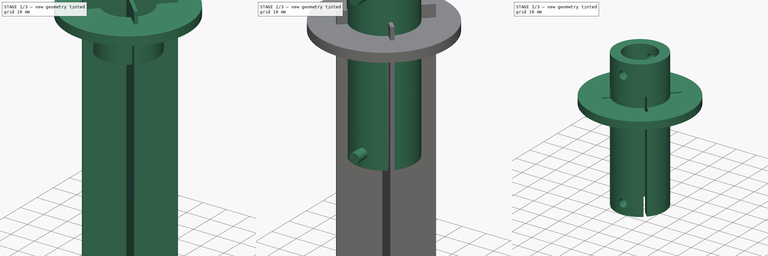
[diagram: build sequence overview — one tinted view per stage of 3, left to right]
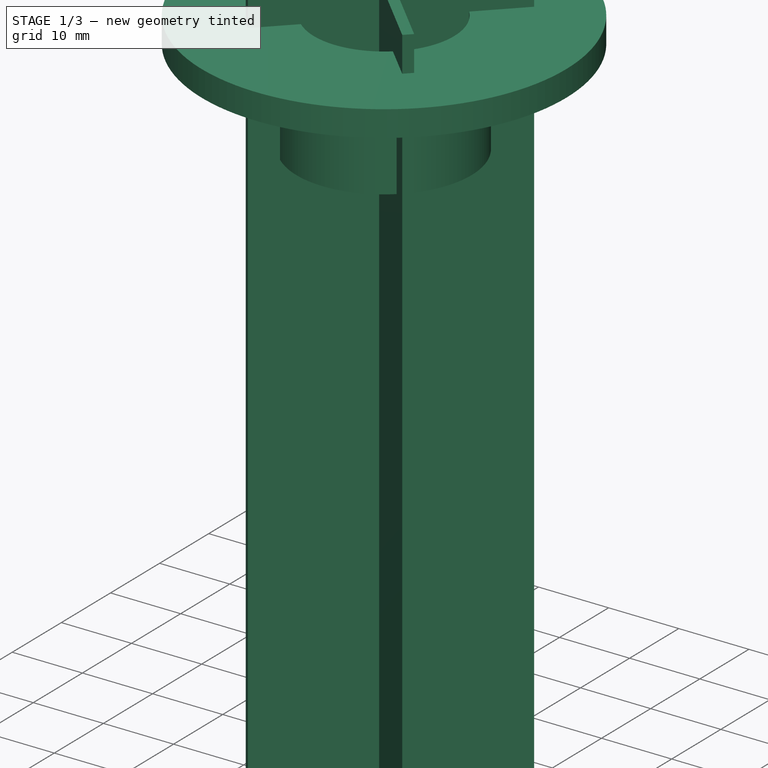
[diagram: stage 1 of 3 — iso view after this stage's code; geometry added in this stage tinted green]
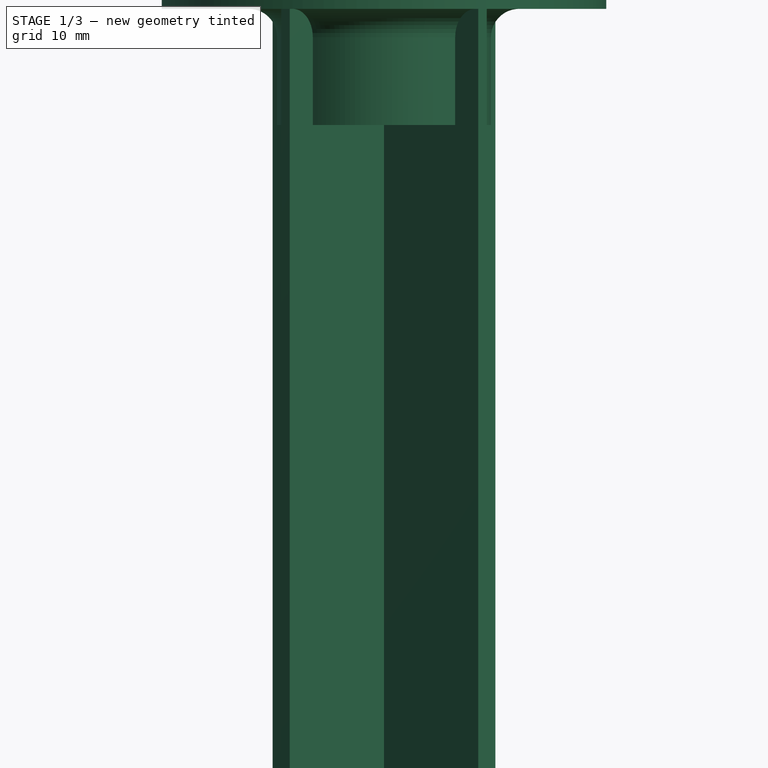
[diagram: stage 1 of 3 — front view after this stage's code; geometry added in this stage tinted green]
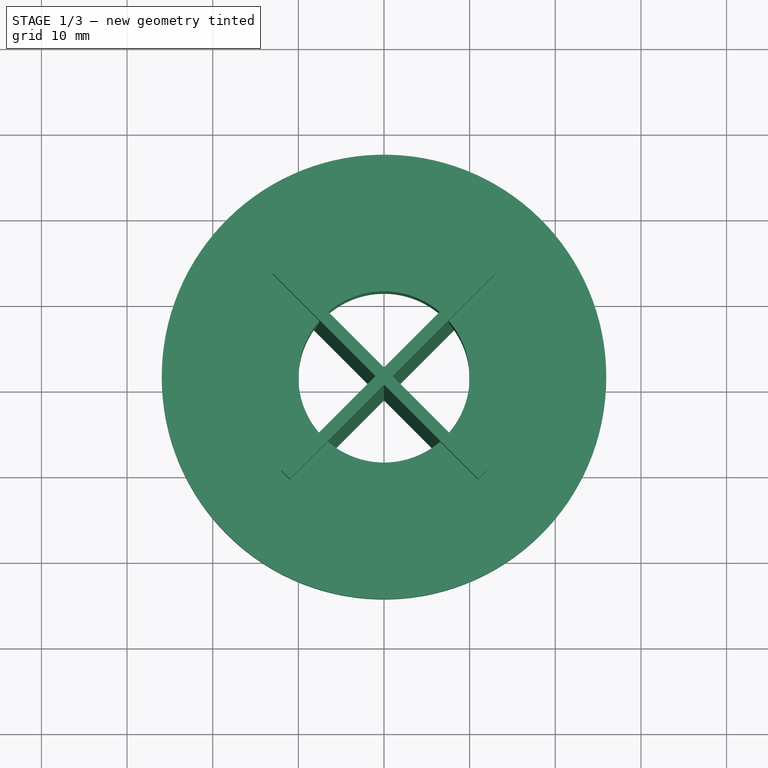
[diagram: stage 1 of 3 — top view after this stage's code; geometry added in this stage tinted green]
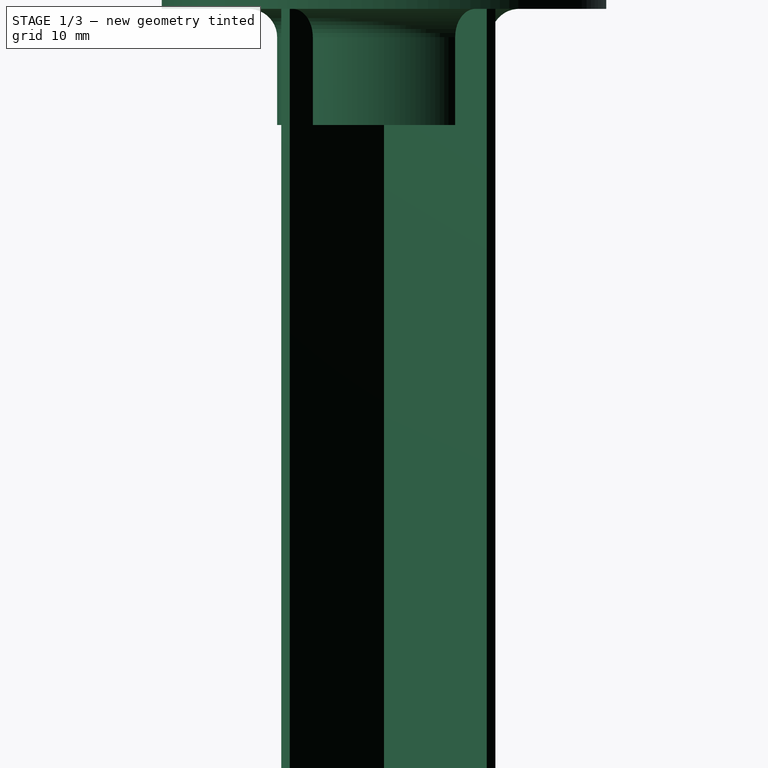
[diagram: stage 1 of 3 — right view after this stage's code; geometry added in this stage tinted green]
FCSTD DOCUMENT  (FreeCAD 0.16R)
Label: Soporte Torre
License: All rights reserved
LicenseURL: http://en.wikipedia.org/wiki/All_rights_reserved
objects: Sketcher::SketchObject×4, PartDesign::Pad×3, Part::Cut×2, PartDesign::Revolution×1, Part::MultiFuse×1
note: 15 computed .brp shape members not serialized (recipe doc carries the construction recipe); baked Part::Feature solids carry a one-line shape summary decoded from their .brp

FEATURE [Sketcher::SketchObject] Sketch001
  Placement = pos=(0,0,0) rot=(-1,0,0;4.71239rad)
  sketch-geometry (7):
    g0: LineSegment StartX=-10 StartY=0 StartZ=0 EndX=-25.9545 EndY=0 EndZ=0
    g1: LineSegment StartX=-25.9545 StartY=0 StartZ=0 EndX=-25.9545 EndY=-3.69479 EndZ=0
    g2: LineSegment StartX=-25.9545 StartY=-3.69479 StartZ=0 EndX=-15.7909 EndY=-3.69479 EndZ=0
    g3: LineSegment StartX=-12.483 StartY=-7.00277 StartZ=0 EndX=-12.483 EndY=-17.2502 EndZ=0
    g4: LineSegment StartX=-12.483 StartY=-17.2502 StartZ=0 EndX=-10 EndY=-17.2502 EndZ=0
    g5: LineSegment StartX=-10 StartY=-17.2502 StartZ=0 EndX=-10 EndY=0 EndZ=0
    g6: ArcOfCircle CenterX=-15.7909 CenterY=-7.00277 CenterZ=0 NormalX=0 NormalY=0 NormalZ=1 Radius=3.30798 StartAngle=0 EndAngle=1.5708
  constraints (14):
    c: PointOnObject(g0,g-1)
    c: Horizontal(g0)
    c: Coincident(g0,g1)
    c: Vertical(g1)
    c: Coincident(g1,g2)
    c: Horizontal(g2)
    c: Vertical(g3)
    c: Coincident(g3,g4)
    c: Horizontal(g4)
    c: Coincident(g4,g5)
    c: Coincident(g5,g0)
    c: Vertical(g5)
    c: Tangent(g2,g6) = 1.5708
    c: Tangent(g3,g6) = 1.5708
FEATURE [PartDesign::Revolution] Revolution
  Angle = 360
  Axis = (0,0,1)
  Base = (0,0,0)
  Placement = pos=(0,0,0) rot=(-1,0,0;4.71239rad)
  ReferenceAxis = -> Sketch001 [V_Axis]
  Sketch = -> Sketch001
FEATURE [Sketcher::SketchObject] Sketch003
  sketch-geometry (12):
    g0: LineSegment StartX=1 StartY=0 StartZ=0 EndX=13 EndY=12 EndZ=0
    g1: LineSegment StartX=13 StartY=12 StartZ=0 EndX=12 EndY=13 EndZ=0
    g2: LineSegment StartX=12 StartY=13 StartZ=0 EndX=0 EndY=1 EndZ=0
    g3: LineSegment StartX=0 StartY=1 StartZ=0 EndX=-12 EndY=13 EndZ=0
    g4: LineSegment StartX=-12 StartY=13 StartZ=0 EndX=-13 EndY=12 EndZ=0
    g5: LineSegment StartX=-13 StartY=12 StartZ=0 EndX=-1 EndY=0 EndZ=0
    g6: LineSegment StartX=-1 StartY=0 StartZ=0 EndX=-12 EndY=-11 EndZ=0
    g7: LineSegment StartX=-12 StartY=-11 StartZ=0 EndX=-11 EndY=-12 EndZ=0
    g8: LineSegment StartX=-11 StartY=-12 StartZ=0 EndX=0 EndY=-1 EndZ=0
    g9: LineSegment StartX=0 StartY=-1 StartZ=0 EndX=11 EndY=-12 EndZ=0
    g10: LineSegment StartX=11 StartY=-12 StartZ=0 EndX=12 EndY=-11 EndZ=0
    g11: LineSegment StartX=12 StartY=-11 StartZ=0 EndX=1 EndY=0 EndZ=0
  constraints (15):
    c: PointOnObject(g0,g-1)
    c: Coincident(g0,g1)
    c: Coincident(g1,g2)
    c: PointOnObject(g2,g-2)
    c: Coincident(g2,g3)
    c: Coincident(g3,g4)
    c: Coincident(g4,g5)
    c: Coincident(g5,g6)
    c: Coincident(g6,g7)
    c: Coincident(g7,g8)
    c: PointOnObject(g8,g-2)
    c: Coincident(g8,g9)
    c: Coincident(g9,g10)
    c: Coincident(g10,g11)
    c: Coincident(g11,g0)
FEATURE [PartDesign::Pad] Pad002
  Length = 5
  Length2 = 100
  Sketch = -> Sketch003
  Type = 4
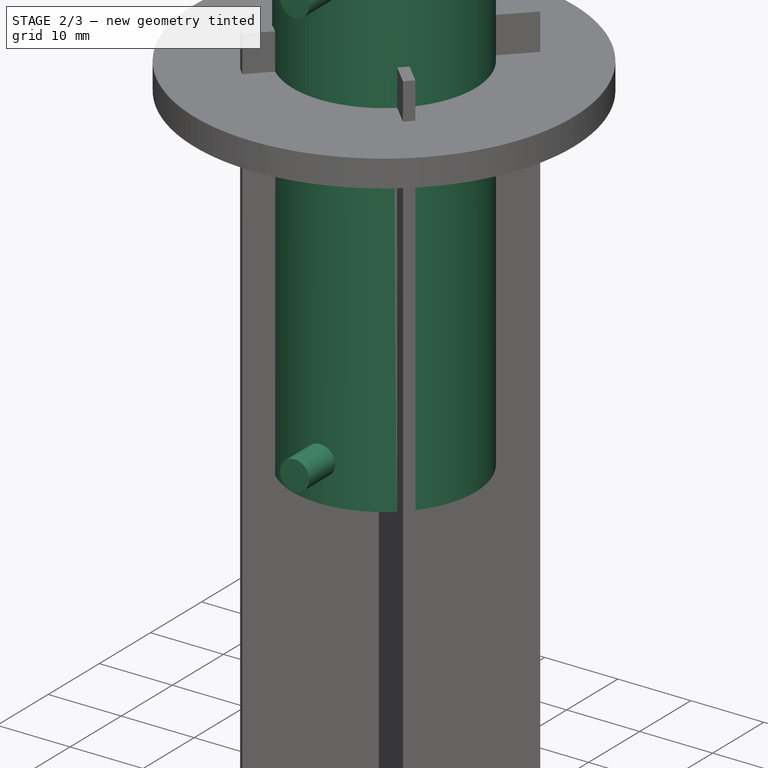
[diagram: stage 2 of 3 — iso view after this stage's code; geometry added in this stage tinted green]
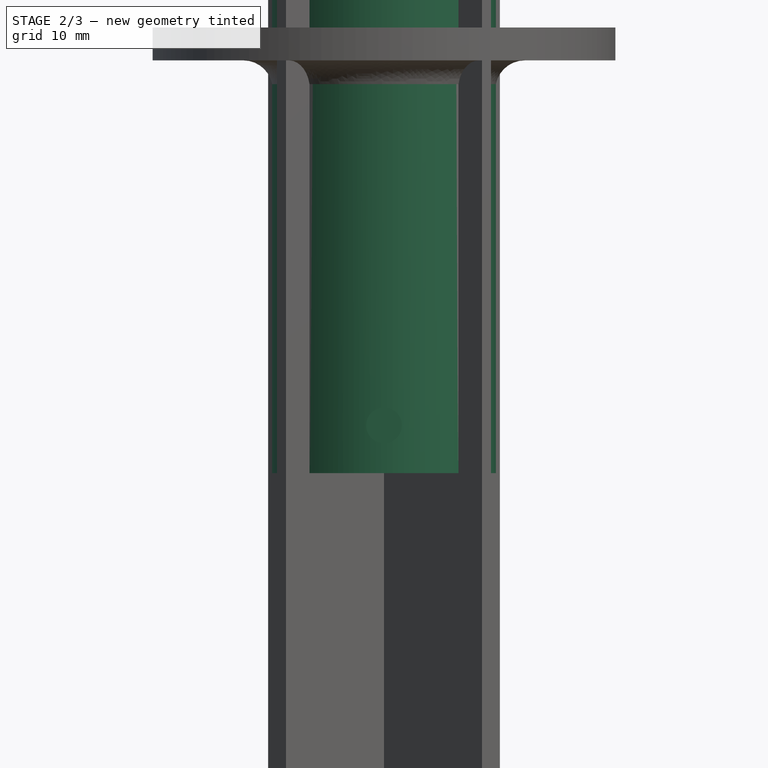
[diagram: stage 2 of 3 — front view after this stage's code; geometry added in this stage tinted green]
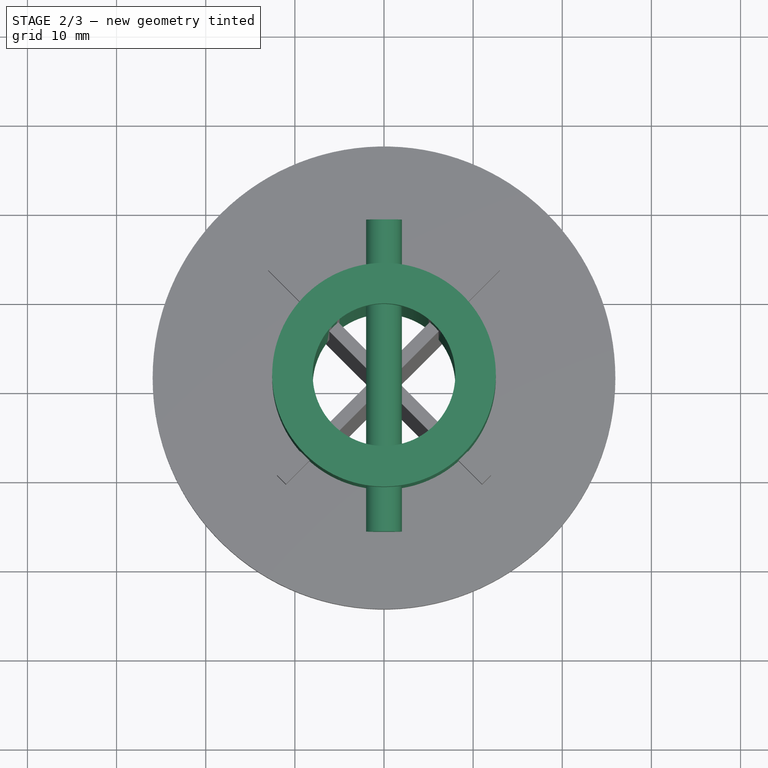
[diagram: stage 2 of 3 — top view after this stage's code; geometry added in this stage tinted green]
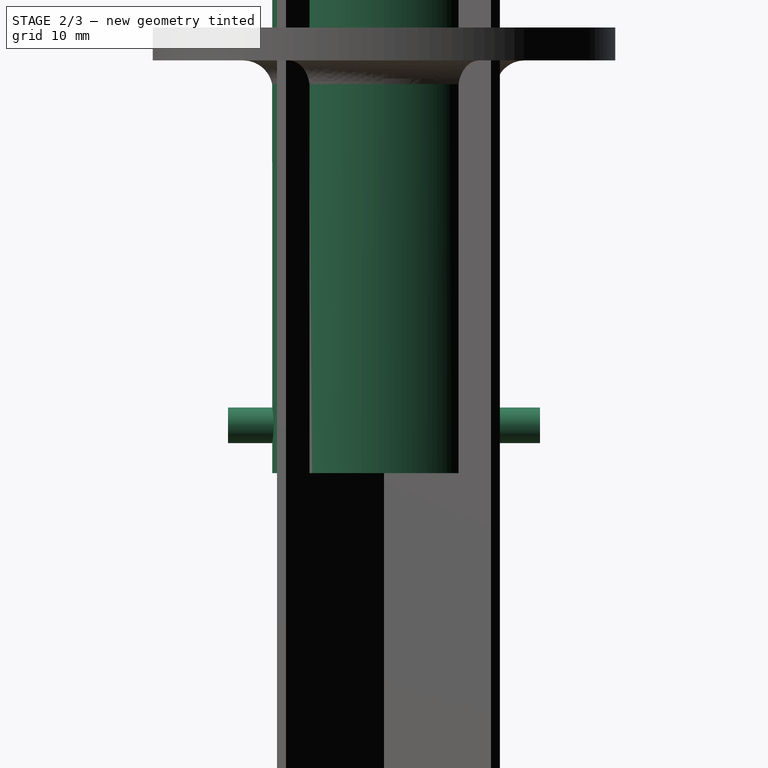
[diagram: stage 2 of 3 — right view after this stage's code; geometry added in this stage tinted green]
FEATURE [Sketcher::SketchObject] Sketch
  sketch-geometry (2):
    g0: Circle CenterX=0 CenterY=0 CenterZ=0 NormalX=0 NormalY=0 NormalZ=1 Radius=8
    g1: Circle CenterX=0 CenterY=0 CenterZ=0 NormalX=0 NormalY=0 NormalZ=1 Radius=12.5459
  constraints (2):
    c: Coincident(g0,g-1)
    c: Coincident(g1,g-1)
FEATURE [PartDesign::Pad] Pad
  Length = 20
  Length2 = 50
  Sketch = -> Sketch
  Type = 4
FEATURE [Sketcher::SketchObject] Sketch002
  Placement = pos=(0,0,0) rot=(-1,0,0;4.71239rad)
  sketch-geometry (2):
    g0: Circle CenterX=0 CenterY=14 CenterZ=0 NormalX=0 NormalY=0 NormalZ=1 Radius=2
    g1: Circle CenterX=0 CenterY=-44.6386 CenterZ=0 NormalX=0 NormalY=0 NormalZ=1 Radius=2.00014
  constraints (1):
    c: PointOnObject(g0,g-2)
FEATURE [PartDesign::Pad] Pad001
  Length = 35
  Length2 = 100
  Midplane = true
  Placement = pos=(0,0,0) rot=(-1,0,0;4.71239rad)
  Sketch = -> Sketch002
  Type = 0
FEATURE [Part::MultiFuse] Fusion
  Shapes = -> [Pad,Revolution]
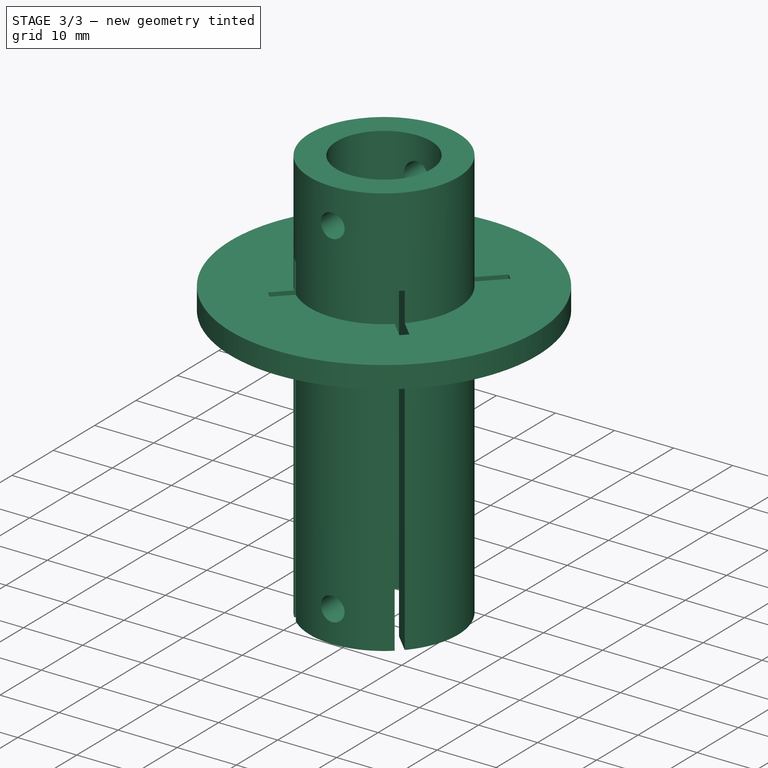
[diagram: stage 3 of 3 — iso view after this stage's code; geometry added in this stage tinted green]
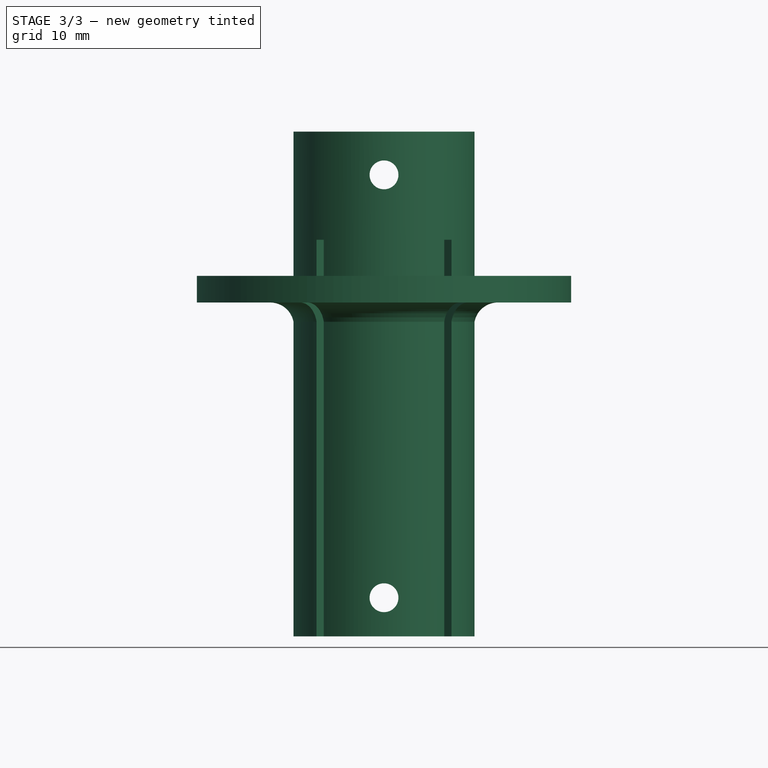
[diagram: stage 3 of 3 — front view after this stage's code; geometry added in this stage tinted green]
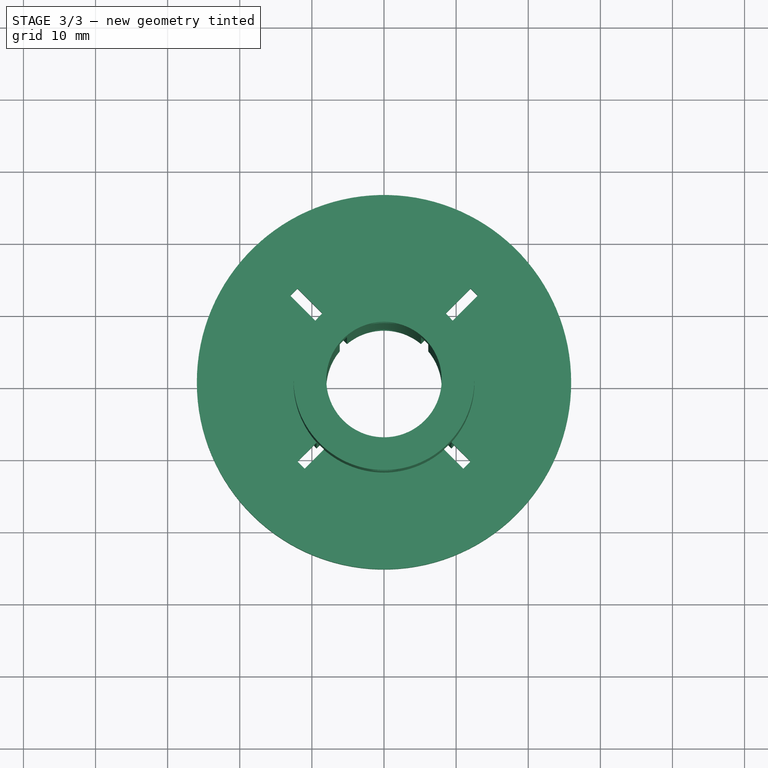
[diagram: stage 3 of 3 — top view after this stage's code; geometry added in this stage tinted green]
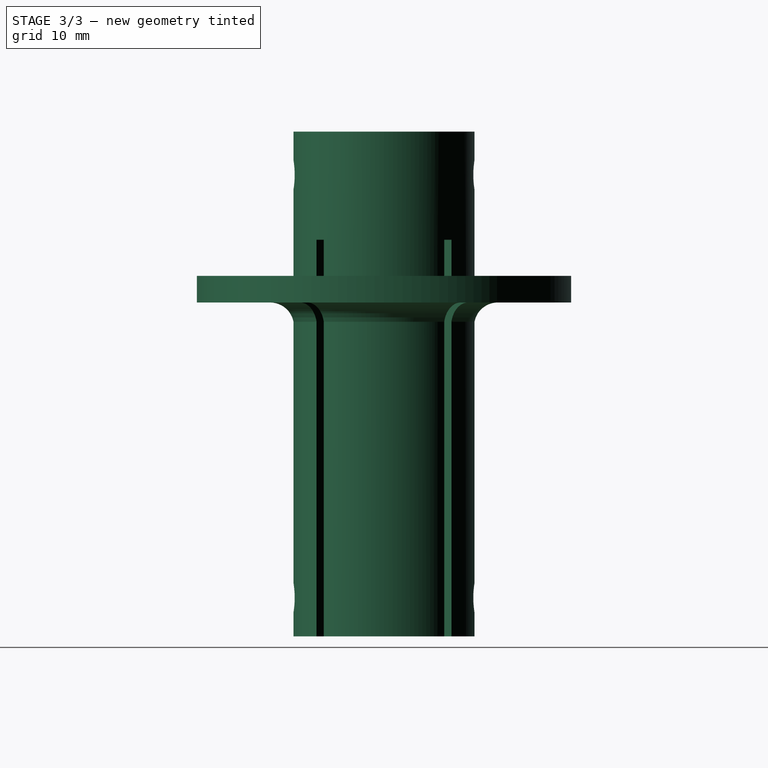
[diagram: stage 3 of 3 — right view after this stage's code; geometry added in this stage tinted green]
FEATURE [Part::Cut] Cut
  Base = -> Fusion
  Tool = -> Pad001
FEATURE [Part::Cut] Cut001
  Base = -> Cut
  Tool = -> Pad002
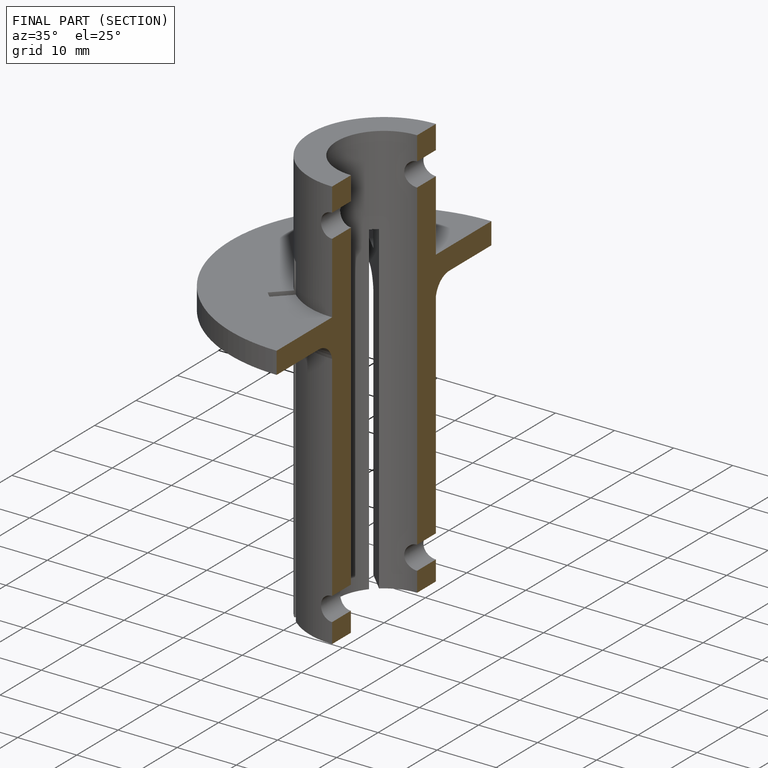
[diagram: finished part — half-section view (interior)]
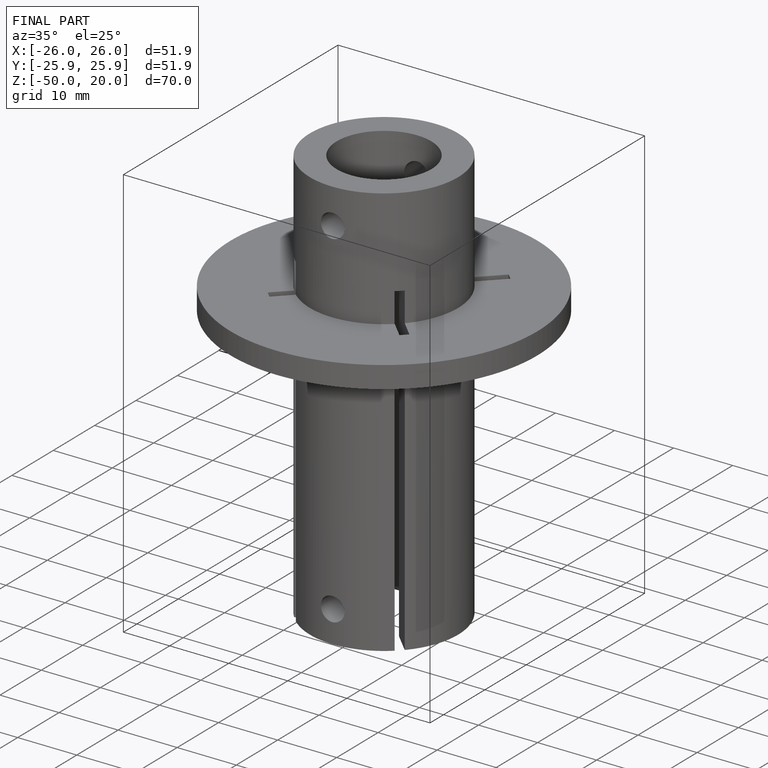
[diagram: finished part — iso view with bounding-box wireframe]
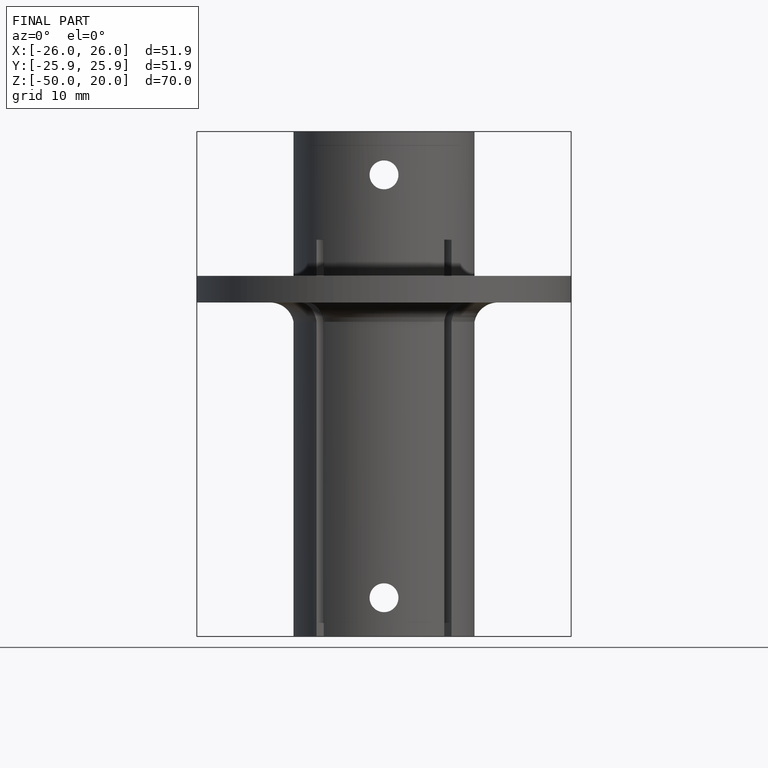
[diagram: finished part — front view with bounding-box wireframe]
